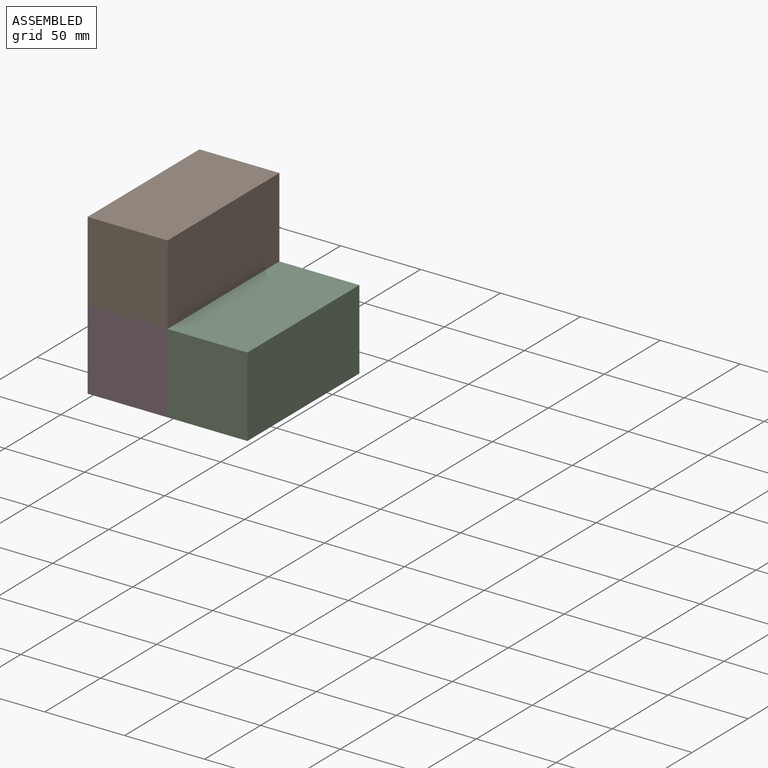
[diagram: assembled view]
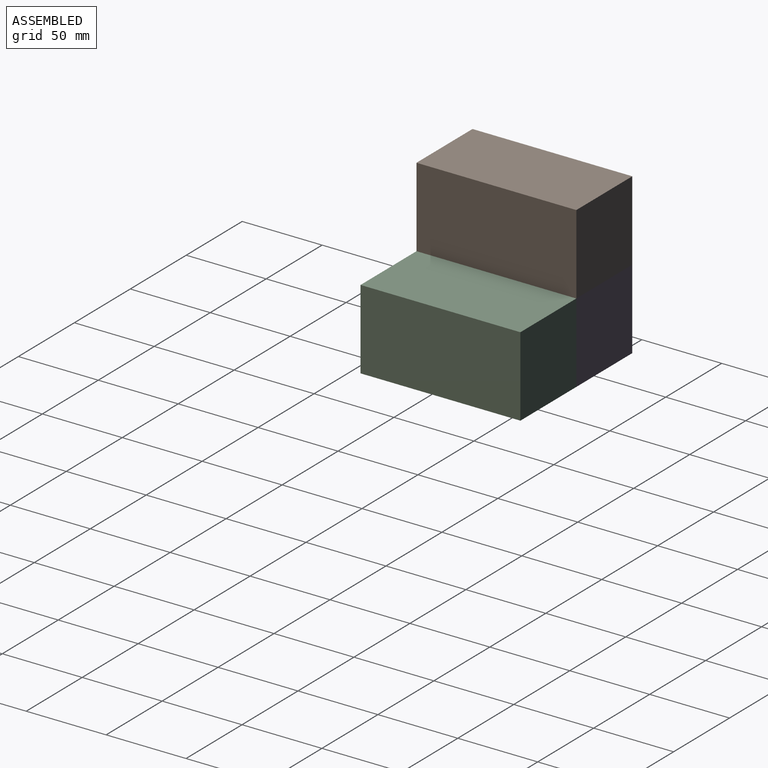
[diagram: assembled view, second angle]
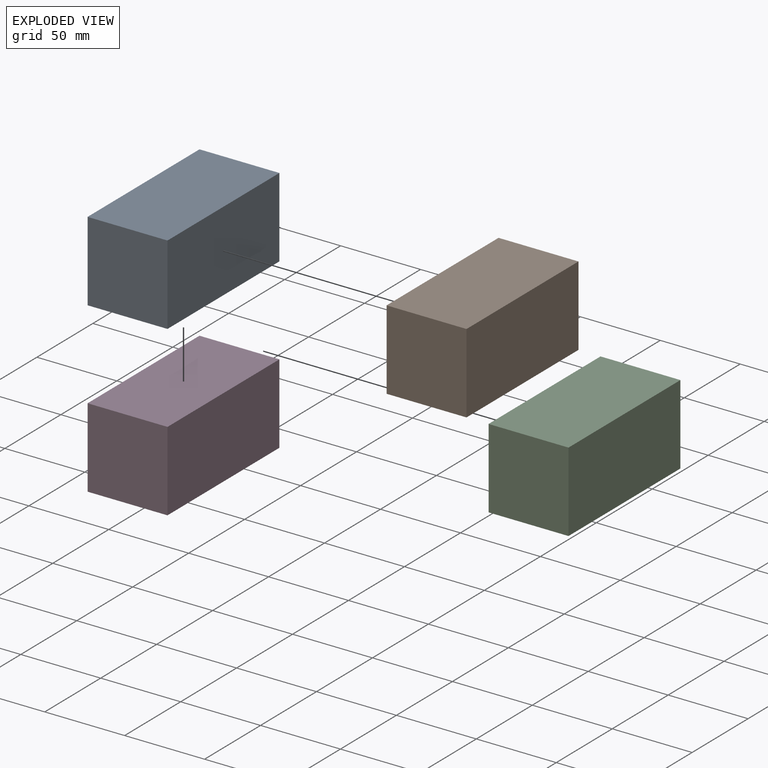
[diagram: exploded view]
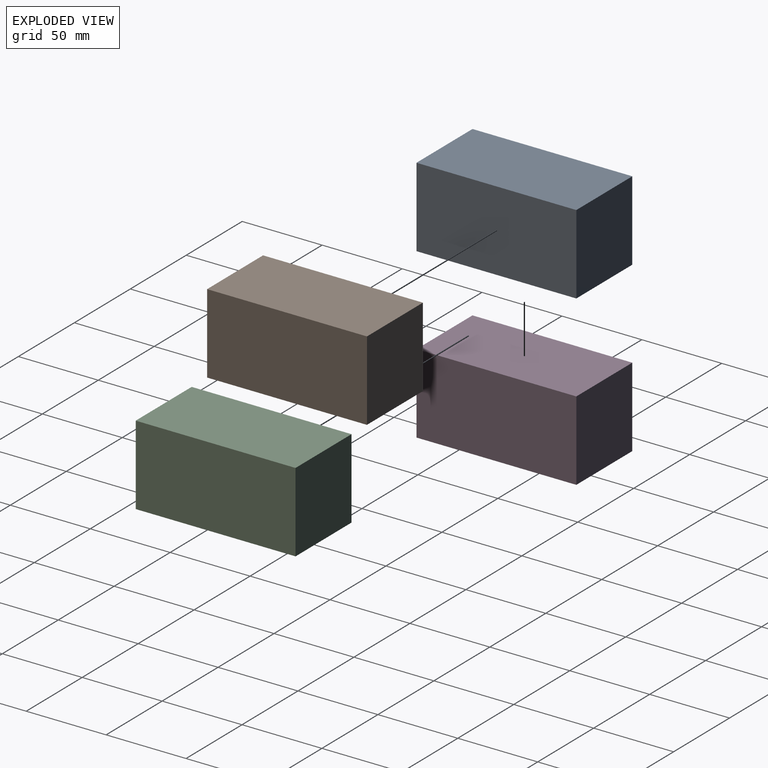
[diagram: exploded view, second angle]
ASSEMBLY  parts=4 mates=2
PART A: 6 faces, bbox 50x100x50 mm
  f0: plane 100x50mm, normal (1,0,0), area 5000mm2, adj f1,f3,f4,f5
  f1: plane 100x50mm, normal (0,0,1), area 5000mm2, adj f0,f2,f4,f5
  f2: plane 100x50mm, normal (-1,0,0), area 5000mm2, adj f1,f3,f4,f5
  f3: plane 100x50mm, normal (0,0,-1), area 5000mm2, adj f0,f2,f4,f5
  f4: plane 50x50mm, normal (0,-1,0), area 2500mm2, adj f0,f1,f2,f3
  f5: plane 50x50mm, normal (0,1,0), area 2500mm2, adj f0,f1,f2,f3
PART B: same geometry as A
PART C: same geometry as A
PART D: same geometry as A
PLACE A t=(18.04,26.76,-10.54)mm fixed
PLACE B t=(18.04,26.76,-10.54)mm
PLACE C t=(68.04,26.76,-60.54)mm
PLACE D t=(18.04,26.76,-60.54)mm
MATE planar D.f0 <-> C.f2  axis (1,0,0) through (-31.96,-23.24,-35.54)mm
MATE planar A.f3 <-> D.f1  axis (0,0,-1) through (-56.96,-23.24,-10.54)mm
